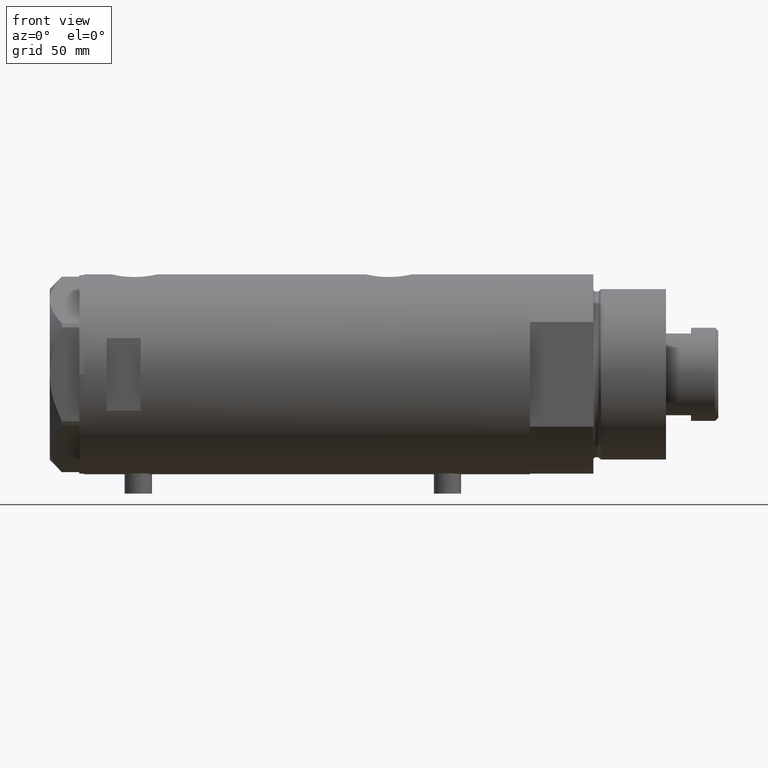
[diagram: clean part render]
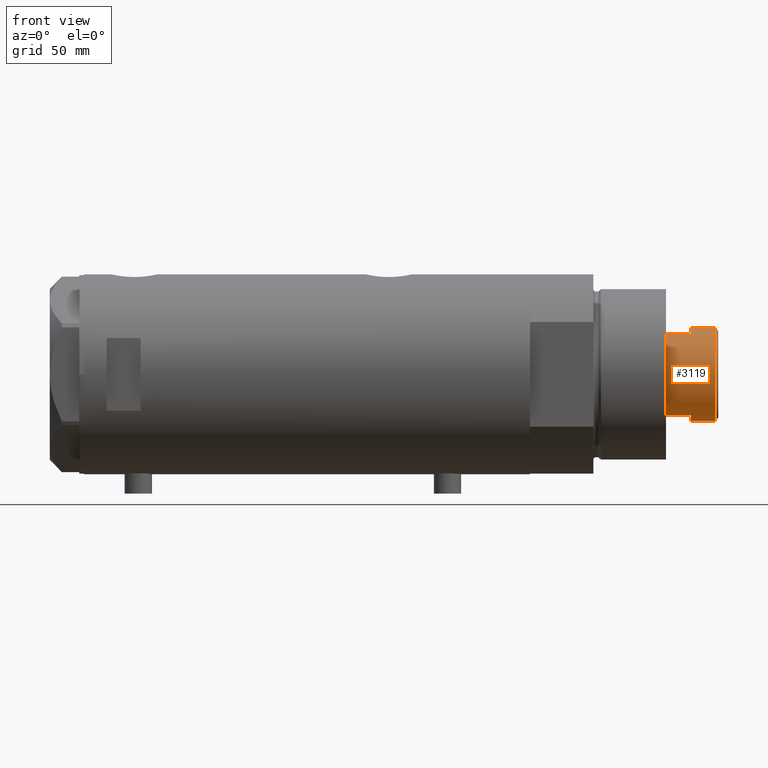
[diagram: same view with one face highlighted and labeled with its STEP entity id]
A machine part, front view. The second image highlights one B-rep face of the part: STEP entity #3119.
In plain terms, the highlighted cylindrical surface (partial cylindrical patch) has radius 20.5 mm, axis along (-1, -0, 0).
Its self-contained STEP definition (entity closure, byte-faithful):
#68 = CARTESIAN_POINT ( 'NONE',  ( 0.000000000000000000, 0.000000000000000000, 241.3000000000000114 ) ) ;
#198 = CARTESIAN_POINT ( 'NONE',  ( -17.97852886083842350, -9.850000000000001421, 241.3000000000000114 ) ) ;
#272 = CARTESIAN_POINT ( 'NONE',  ( 20.50000000000000355, 2.510525938252074481E-15, 241.3000000000000114 ) ) ;
#305 = AXIS2_PLACEMENT_3D ( 'NONE', #3485, #3870, #986 ) ;
#371 = EDGE_CURVE ( 'NONE', #3950, #3361, #3897, .T. ) ;
#475 = VECTOR ( 'NONE', #4086, 1000.000000000000000 ) ;
#477 = AXIS2_PLACEMENT_3D ( 'NONE', #1937, #824, #3301 ) ;
#558 = VECTOR ( 'NONE', #1662, 1000.000000000000000 ) ;
#633 = EDGE_CURVE ( 'NONE', #2412, #3500, #2280, .T. ) ;
#646 = VECTOR ( 'NONE', #2292, 1000.000000000000000 ) ;
#739 = CARTESIAN_POINT ( 'NONE',  ( 0.000000000000000000, 0.000000000000000000, 230.3000000000000114 ) ) ;
#810 = CARTESIAN_POINT ( 'NONE',  ( 20.50000000000000355, 2.510525938252074481E-15, 251.9000000000001194 ) ) ;
#824 = DIRECTION ( 'NONE',  ( -0.000000000000000000, -0.000000000000000000, -1.000000000000000000 ) ) ;
#900 = CARTESIAN_POINT ( 'NONE',  ( 17.97852886083843060, -9.849999999999994316, 241.3000000000000114 ) ) ;
#975 = LINE ( 'NONE', #2363, #558 ) ;
#986 = DIRECTION ( 'NONE',  ( 1.000000000000000000, 0.000000000000000000, 0.000000000000000000 ) ) ;
#1000 = LINE ( 'NONE', #272, #646 ) ;
#1112 = VERTEX_POINT ( 'NONE', #4447 ) ;
#1121 = CARTESIAN_POINT ( 'NONE',  ( -20.50000000000000000, 0.000000000000000000, 241.3000000000000114 ) ) ;
#1169 = ORIENTED_EDGE ( 'NONE', *, *, #1679, .T. ) ;
#1174 = CARTESIAN_POINT ( 'NONE',  ( -17.97852886083842705, -9.849999999999972999, 230.3000000000000114 ) ) ;
#1300 = ORIENTED_EDGE ( 'NONE', *, *, #633, .T. ) ;
#1336 = VERTEX_POINT ( 'NONE', #810 ) ;
#1364 = EDGE_LOOP ( 'NONE', ( #3031, #3271, #3555, #1300, #3189, #1169, #1600, #2805 ) ) ;
#1491 = DIRECTION ( 'NONE',  ( 0.000000000000000000, 0.000000000000000000, 1.000000000000000000 ) ) ;
#1539 = CARTESIAN_POINT ( 'NONE',  ( 0.000000000000000000, 0.000000000000000000, 251.9000000000001194 ) ) ;
#1600 = ORIENTED_EDGE ( 'NONE', *, *, #2481, .F. ) ;
#1662 = DIRECTION ( 'NONE',  ( -0.000000000000000000, -0.000000000000000000, -1.000000000000000000 ) ) ;
#1679 = EDGE_CURVE ( 'NONE', #3249, #3978, #4491, .T. ) ;
#1692 = DIRECTION ( 'NONE',  ( -0.000000000000000000, -0.000000000000000000, -1.000000000000000000 ) ) ;
#1858 = DIRECTION ( 'NONE',  ( 1.000000000000000000, 0.000000000000000000, 0.000000000000000000 ) ) ;
#1867 = FACE_OUTER_BOUND ( 'NONE', #1364, .T. ) ;
#1937 = CARTESIAN_POINT ( 'NONE',  ( 0.000000000000000000, 0.000000000000000000, 241.3000000000000114 ) ) ;
#2042 = CARTESIAN_POINT ( 'NONE',  ( -17.97852886083842705, -9.849999999999996092, 241.3000000000000114 ) ) ;
#2172 = DIRECTION ( 'NONE',  ( 0.000000000000000000, 0.000000000000000000, -1.000000000000000000 ) ) ;
#2280 = CIRCLE ( 'NONE', #305, 20.50000000000000000 ) ;
#2292 = DIRECTION ( 'NONE',  ( -0.000000000000000000, -0.000000000000000000, -1.000000000000000000 ) ) ;
#2363 = CARTESIAN_POINT ( 'NONE',  ( -20.50000000000000355, 0.000000000000000000, 241.3000000000000114 ) ) ;
#2412 = VERTEX_POINT ( 'NONE', #1121 ) ;
#2458 = EDGE_CURVE ( 'NONE', #1112, #2412, #975, .T. ) ;
#2478 = DIRECTION ( 'NONE',  ( 0.000000000000000000, 0.000000000000000000, 1.000000000000000000 ) ) ;
#2481 = EDGE_CURVE ( 'NONE', #3950, #3978, #4457, .T. ) ;
#2499 = AXIS2_PLACEMENT_3D ( 'NONE', #68, #1491, #4325 ) ;
#2593 = EDGE_CURVE ( 'NONE', #3500, #3249, #3373, .T. ) ;
#2642 = CYLINDRICAL_SURFACE ( 'NONE', #477, 20.50000000000000355 ) ;
#2744 = CARTESIAN_POINT ( 'NONE',  ( 17.97852886083843060, -9.849999999999994316, 241.3000000000000114 ) ) ;
#2805 = ORIENTED_EDGE ( 'NONE', *, *, #371, .T. ) ;
#2851 = AXIS2_PLACEMENT_3D ( 'NONE', #1539, #2172, #1858 ) ;
#3031 = ORIENTED_EDGE ( 'NONE', *, *, #3721, .F. ) ;
#3119 = ADVANCED_FACE ( 'NONE', ( #1867 ), #2642, .T. ) ;
#3189 = ORIENTED_EDGE ( 'NONE', *, *, #2593, .T. ) ;
#3249 = VERTEX_POINT ( 'NONE', #1174 ) ;
#3271 = ORIENTED_EDGE ( 'NONE', *, *, #4445, .T. ) ;
#3301 = DIRECTION ( 'NONE',  ( -1.000000000000000000, 0.000000000000000000, 0.000000000000000000 ) ) ;
#3361 = VERTEX_POINT ( 'NONE', #4166 ) ;
#3373 = LINE ( 'NONE', #198, #3999 ) ;
#3485 = CARTESIAN_POINT ( 'NONE',  ( 0.000000000000000000, 0.000000000000000000, 241.3000000000000114 ) ) ;
#3500 = VERTEX_POINT ( 'NONE', #2042 ) ;
#3555 = ORIENTED_EDGE ( 'NONE', *, *, #2458, .T. ) ;
#3721 = EDGE_CURVE ( 'NONE', #1336, #3361, #1000, .T. ) ;
#3870 = DIRECTION ( 'NONE',  ( 0.000000000000000000, 0.000000000000000000, 1.000000000000000000 ) ) ;
#3884 = DIRECTION ( 'NONE',  ( 1.000000000000000000, 0.000000000000000000, 0.000000000000000000 ) ) ;
#3897 = CIRCLE ( 'NONE', #2499, 20.50000000000000000 ) ;
#3950 = VERTEX_POINT ( 'NONE', #2744 ) ;
#3978 = VERTEX_POINT ( 'NONE', #4134 ) ;
#3999 = VECTOR ( 'NONE', #1692, 1000.000000000000000 ) ;
#4010 = CIRCLE ( 'NONE', #2851, 20.50000000000000355 ) ;
#4086 = DIRECTION ( 'NONE',  ( -0.000000000000000000, -0.000000000000000000, -1.000000000000000000 ) ) ;
#4118 = AXIS2_PLACEMENT_3D ( 'NONE', #739, #2478, #3884 ) ;
#4134 = CARTESIAN_POINT ( 'NONE',  ( 17.97852886083843060, -9.849999999999960565, 230.3000000000000114 ) ) ;
#4166 = CARTESIAN_POINT ( 'NONE',  ( 20.50000000000000000, 2.510525938252074481E-15, 241.3000000000000114 ) ) ;
#4325 = DIRECTION ( 'NONE',  ( 1.000000000000000000, 0.000000000000000000, 0.000000000000000000 ) ) ;
#4445 = EDGE_CURVE ( 'NONE', #1336, #1112, #4010, .T. ) ;
#4447 = CARTESIAN_POINT ( 'NONE',  ( -20.50000000000000355, 0.000000000000000000, 251.9000000000001194 ) ) ;
#4457 = LINE ( 'NONE', #900, #475 ) ;
#4491 = CIRCLE ( 'NONE', #4118, 20.50000000000000355 ) ;